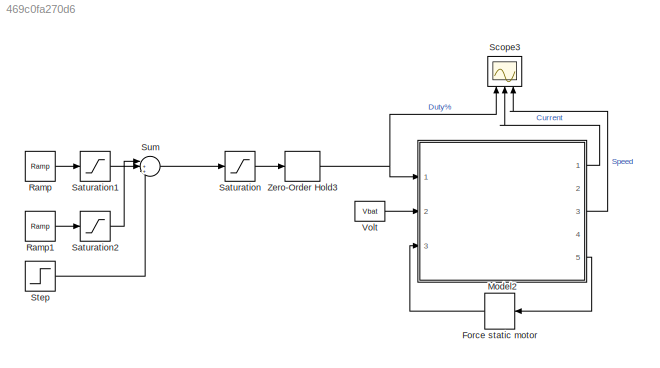
MODEL slx_469c0fa270d6
KIND model
CONFIG AbsTol = auto
CONFIG EnableMultiTasking = off
CONFIG FixedStep = auto
CONFIG InitFcn = Parameters_Model\nParameters_Simulation\nParameters_Test_Ramp
CONFIG MaxStep = 5e-5
CONFIG MinStep = auto
CONFIG PreLoadFcn = modelDir = fileparts(get_param(bdroot, 'FileName'));\naddpath(fullfile(modelDir,'../Parameters'));\naddpath(fullfile(modelDir,'subsystems'));\n\nParameters_Model\nParameters_Simulation\nParameters_Test_Ramp
CONFIG RelTol = 1e-3
CONFIG SampleTimeConstraint = Unconstrained
CONFIG Solver = VariableStepAuto
CONFIG SolverName = VariableStepAuto
CONFIG StartTime = 0.0
CONFIG StopTime = 2*ramp_time
BLOCK [ManualSwitch] Force static motor
BLOCK [ModelReference] Model2
  ModelNameDialog = DC_Motor_BrakeMode_Ideal
  ModelReferenceVersion = 1.26
  Ports = [3, 5]
BLOCK [Reference] Ramp  REF=simulink/Sources/Ramp
  Ports = [0, 1]
  SourceBlock = simulink/Sources/Ramp
  SourceProductBaseCode = SL
  SourceProductName = Simulink
  SourceType = Ramp
BLOCK [Reference] Ramp1  REF=simulink/Sources/Ramp
  Ports = [0, 1]
  SourceBlock = simulink/Sources/Ramp
  SourceProductBaseCode = SL
  SourceProductName = Simulink
  SourceType = Ramp
BLOCK [Saturate] Saturation
  InputPortMap = u0
  LowerLimit = -1
  Ports = [1, 1]
  UpperLimit = 1
BLOCK [Saturate] Saturation1
  InputPortMap = u0
  LowerLimit = min(ramp_duty_start, ramp_duty_end)
  Ports = [1, 1]
  UpperLimit = max(ramp_duty_start, ramp_duty_end)
BLOCK [Saturate] Saturation2
  InputPortMap = u0
  LowerLimit = min(ramp_duty_start, ramp_duty_end)
  Ports = [1, 1]
  UpperLimit = max(ramp_duty_start, ramp_duty_end)
BLOCK [Scope] Scope3
  Floating = off
  NumInputPorts = 3
  Ports = [3]
  ScopeSpecificationString = Simulink.scopes.TimeScopeBlockCfg('CurrentConfiguration', extmgr.ConfigurationSet(extmgr.Configuration('Core','General UI',true),extmgr.Configuration('Core','Source UI',true),extmgr.Configuration('Sources','WiredSimulink',true,'DataLoggingVariableName','ScopeData1'),extmgr.Configuration('Visuals','Time Domain',true,'SerializedDisplays',{struct('MinYLimReal','-0.11364','MaxYLimReal','1.02273','YLab...<+2817ch>
BLOCK [Step] Step
  After = -2*ramp_duty_end
  SampleTime = 0
  Time = ramp_time
BLOCK [Sum] Sum
  IconShape = round
  InputSameDT = off
  Inputs = |+++
  OutDataTypeStr = Inherit: Inherit via internal rule
  Ports = [3, 1]
  SaturateOnIntegerOverflow = off
BLOCK [Constant] Volt
  Value = Vbat
BLOCK [ZeroOrderHold] Zero-Order Hold3
  SampleTime = ramp_time/(ramp_steps+1)
LINE Force static motor:1 -> Model2:3
LINE Model2:1 -> Scope3:2
LINE Model2:3 -> Scope3:3
LINE Model2:5 -> Force static motor:1
LINE Ramp1:1 -> Saturation2:1
LINE Ramp:1 -> Saturation1:1
LINE Saturation1:1 -> Sum:1
LINE Saturation2:1 -> Sum:2
LINE Saturation:1 -> Zero-Order Hold3:1
LINE Step:1 -> Sum:3
LINE Sum:1 -> Saturation:1
LINE Volt:1 -> Model2:2
NET Zero-Order Hold3:1 -> Model2:1, Scope3:1
note: NET lines group one-source signal fan-out (src -> all destinations, sorted); 1:1 wires keep LINE
